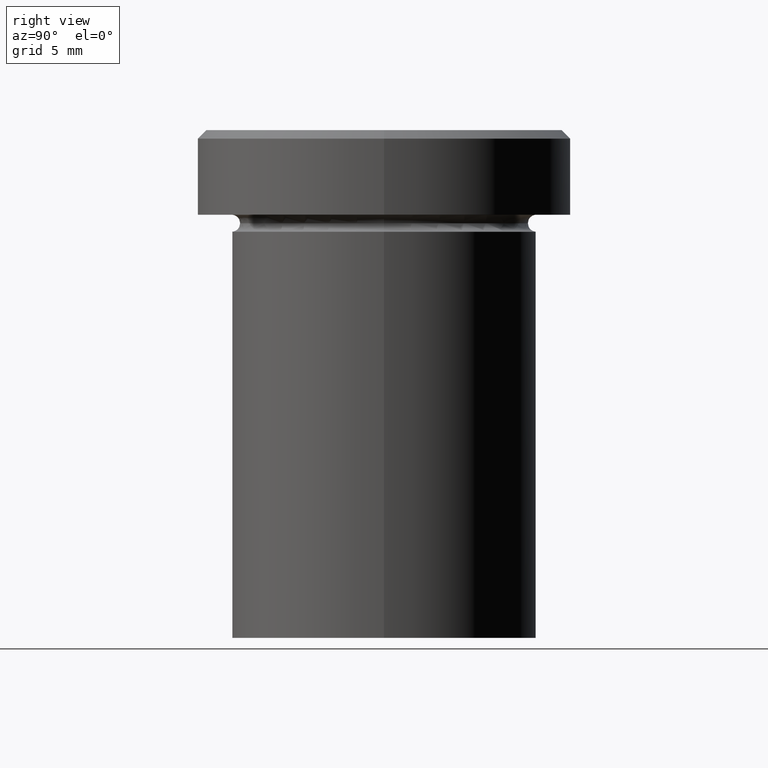
[diagram: clean part render]
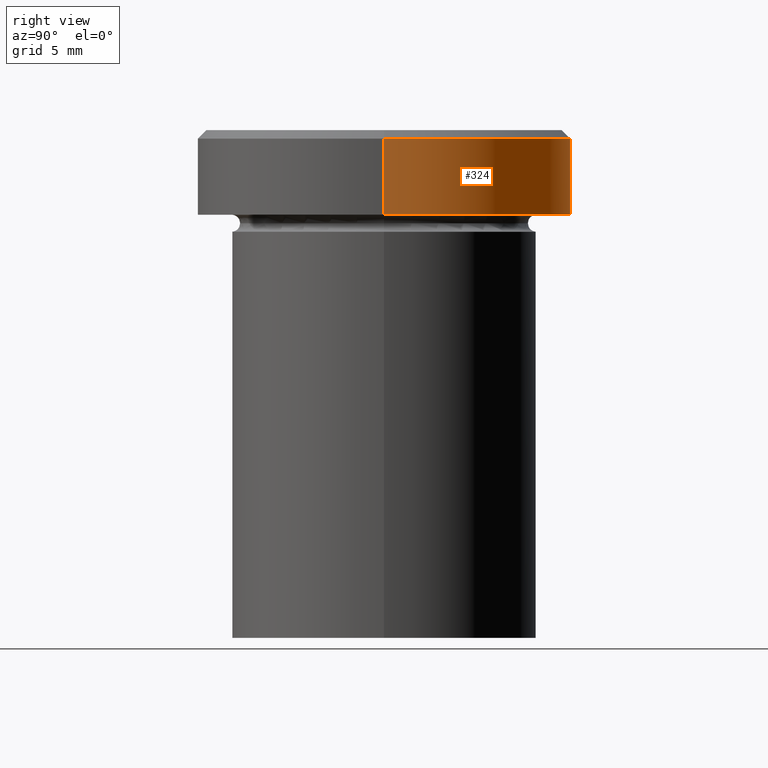
[diagram: same view with one face highlighted and labeled with its STEP entity id]
A machine part, right view. The second image highlights one B-rep face of the part: STEP entity #324.
In plain terms, the highlighted cylindrical surface (partial cylindrical patch) has radius 11 mm, axis along (-0, -0, 1).
Its self-contained STEP definition (entity closure, byte-faithful):
#4 = EDGE_CURVE ( 'NONE', #88, #63, #204, .T. ) ;
#28 = EDGE_LOOP ( 'NONE', ( #275, #309, #133, #155 ) ) ;
#37 = CYLINDRICAL_SURFACE ( 'NONE', #89, 11.00000000000000178 ) ;
#38 = DIRECTION ( 'NONE',  ( -0.000000000000000000, -0.000000000000000000, 1.000000000000000000 ) ) ;
#63 = VERTEX_POINT ( 'NONE', #104 ) ;
#66 = CARTESIAN_POINT ( 'NONE',  ( 0.000000000000000000, 0.000000000000000000, 0.000000000000000000 ) ) ;
#76 = VECTOR ( 'NONE', #102, 1000.000000000000000 ) ;
#88 = VERTEX_POINT ( 'NONE', #383 ) ;
#89 = AXIS2_PLACEMENT_3D ( 'NONE', #66, #227, #352 ) ;
#102 = DIRECTION ( 'NONE',  ( -0.000000000000000000, -0.000000000000000000, 1.000000000000000000 ) ) ;
#104 = CARTESIAN_POINT ( 'NONE',  ( -11.00000000000000178, 1.347111479062088602E-15, -0.5000000000000125455 ) ) ;
#133 = ORIENTED_EDGE ( 'NONE', *, *, #240, .T. ) ;
#140 = EDGE_CURVE ( 'NONE', #260, #88, #178, .T. ) ;
#155 = ORIENTED_EDGE ( 'NONE', *, *, #364, .F. ) ;
#178 = CIRCLE ( 'NONE', #334, 11.00000000000000000 ) ;
#180 = DIRECTION ( 'NONE',  ( 0.000000000000000000, 0.000000000000000000, -1.000000000000000000 ) ) ;
#196 = DIRECTION ( 'NONE',  ( 1.000000000000000000, 0.000000000000000000, 0.000000000000000000 ) ) ;
#204 = LINE ( 'NONE', #323, #76 ) ;
#206 = CARTESIAN_POINT ( 'NONE',  ( 0.000000000000000000, 0.000000000000000000, -0.5000000000000125455 ) ) ;
#209 = AXIS2_PLACEMENT_3D ( 'NONE', #206, #180, #273 ) ;
#217 = CARTESIAN_POINT ( 'NONE',  ( 11.00000000000000178, 0.000000000000000000, -0.5000000000000125455 ) ) ;
#227 = DIRECTION ( 'NONE',  ( -0.000000000000000000, -0.000000000000000000, 1.000000000000000000 ) ) ;
#240 = EDGE_CURVE ( 'NONE', #63, #294, #377, .T. ) ;
#244 = CARTESIAN_POINT ( 'NONE',  ( 11.00000000000000000, 0.000000000000000000, -5.000000000000000000 ) ) ;
#247 = DIRECTION ( 'NONE',  ( -0.000000000000000000, -0.000000000000000000, 1.000000000000000000 ) ) ;
#260 = VERTEX_POINT ( 'NONE', #244 ) ;
#273 = DIRECTION ( 'NONE',  ( 1.000000000000000000, 0.000000000000000000, 0.000000000000000000 ) ) ;
#275 = ORIENTED_EDGE ( 'NONE', *, *, #140, .T. ) ;
#294 = VERTEX_POINT ( 'NONE', #217 ) ;
#304 = LINE ( 'NONE', #401, #375 ) ;
#309 = ORIENTED_EDGE ( 'NONE', *, *, #4, .T. ) ;
#316 = CARTESIAN_POINT ( 'NONE',  ( 0.000000000000000000, 0.000000000000000000, -5.000000000000000000 ) ) ;
#323 = CARTESIAN_POINT ( 'NONE',  ( -11.00000000000000178, 1.347111479062088602E-15, 0.000000000000000000 ) ) ;
#324 = ADVANCED_FACE ( 'NONE', ( #408 ), #37, .T. ) ;
#334 = AXIS2_PLACEMENT_3D ( 'NONE', #316, #38, #196 ) ;
#352 = DIRECTION ( 'NONE',  ( 1.000000000000000000, 0.000000000000000000, 0.000000000000000000 ) ) ;
#364 = EDGE_CURVE ( 'NONE', #260, #294, #304, .T. ) ;
#375 = VECTOR ( 'NONE', #247, 1000.000000000000000 ) ;
#377 = CIRCLE ( 'NONE', #209, 11.00000000000000178 ) ;
#383 = CARTESIAN_POINT ( 'NONE',  ( -11.00000000000000000, 1.347111479062088602E-15, -5.000000000000000000 ) ) ;
#401 = CARTESIAN_POINT ( 'NONE',  ( 11.00000000000000178, 0.000000000000000000, 0.000000000000000000 ) ) ;
#408 = FACE_OUTER_BOUND ( 'NONE', #28, .T. ) ;